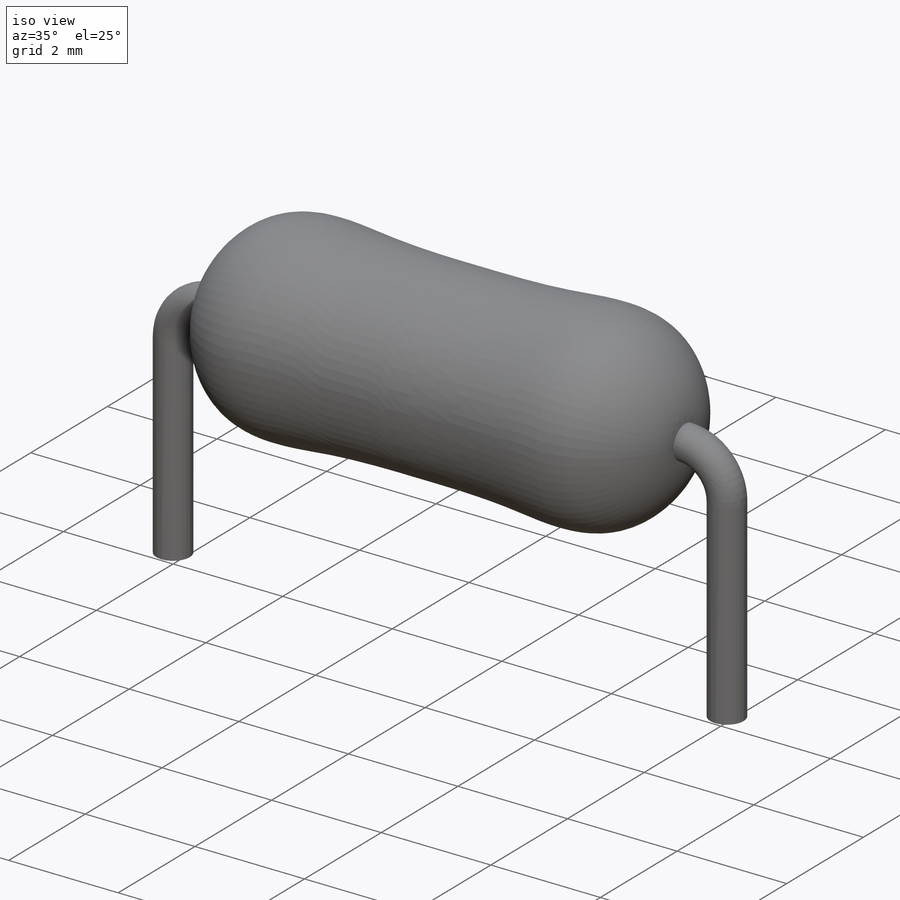
[diagram: iso view]
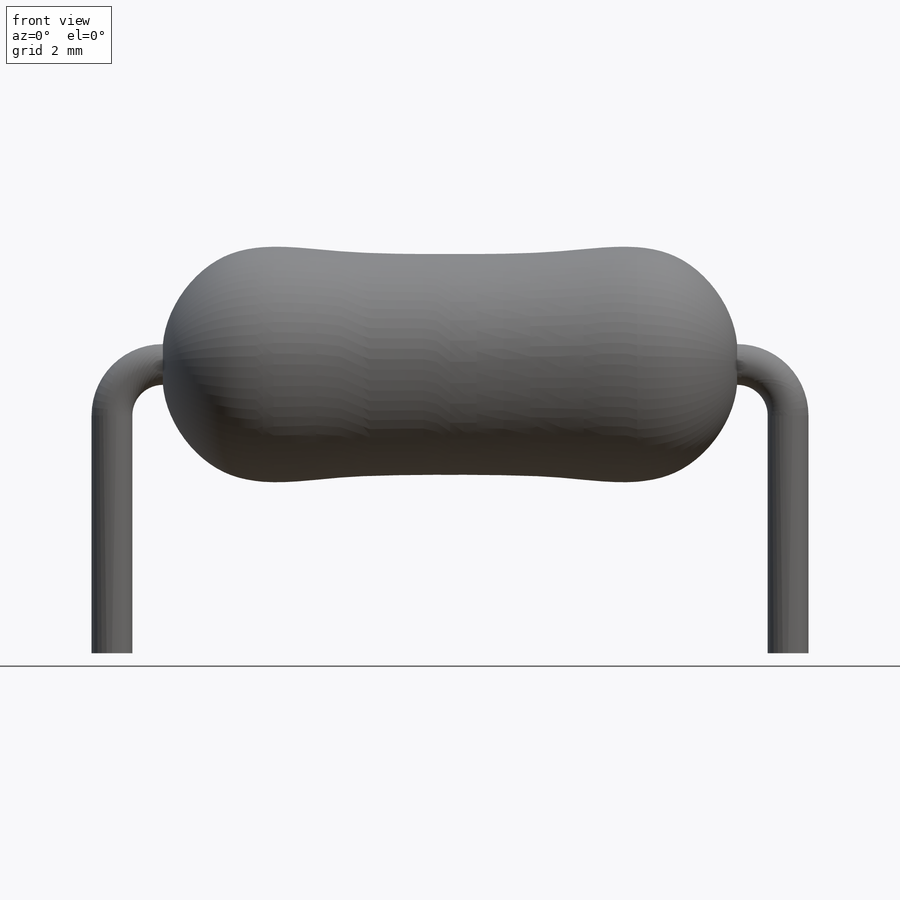
[diagram: front view]
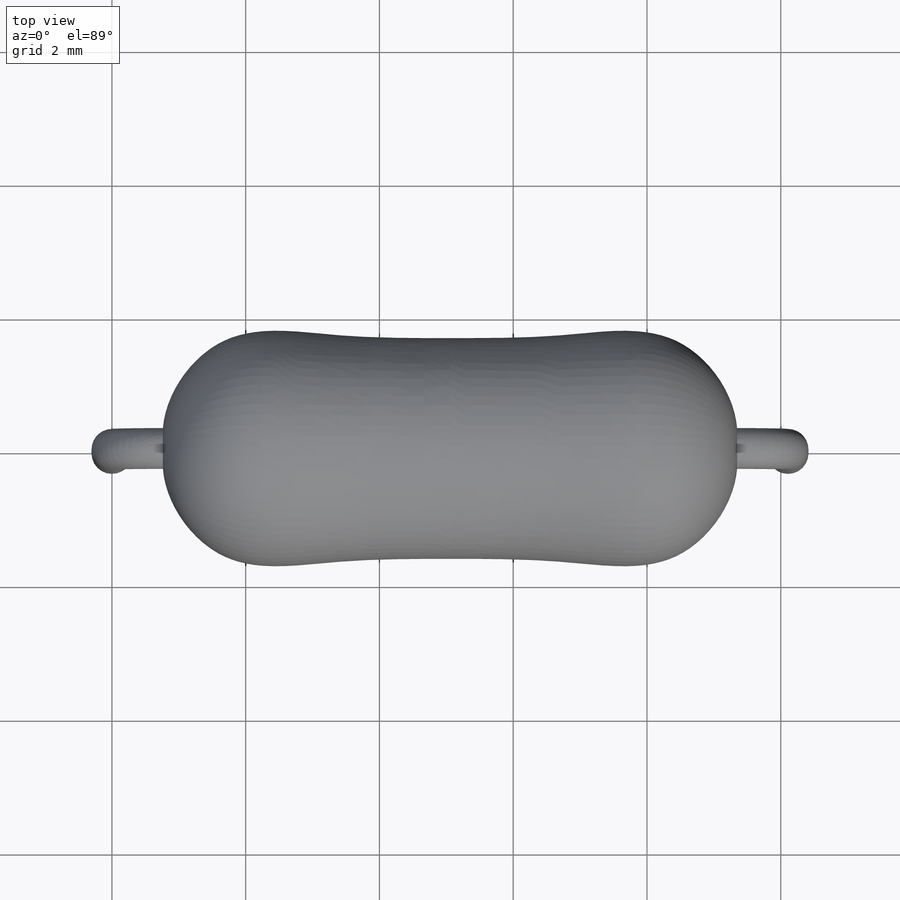
[diagram: top view]
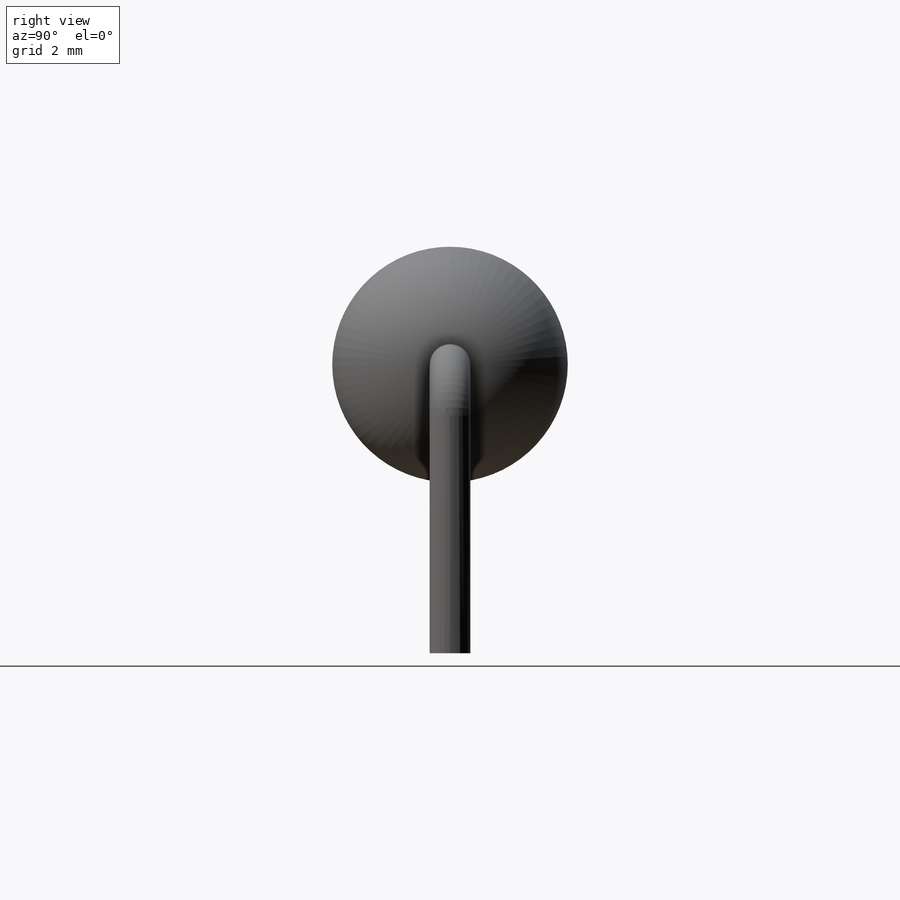
[diagram: right view]
SOLIDWORKS PART (.sldprt)
format: sldprt  version: not decoded by parser v0  size: 392,192 bytes
history: native  units: mm
features: sketch x6, plane x2, mirror x2, material x1, sweep x1, revolve x1 (+12 scaffold rows collapsed)
feature tree (25):
  scaffold x12  (default folders/planes/origin — collapsed)
  material  "Material <not specified>"
  sketch  "Sketch1"
  plane  "Plane4"
  sketch  "Sketch3"  dims[D1=0.6096mm]
  sweep  "Base-Sweep"
  sketch  "Sketch4"
  revolve  "Boss-Revolve1"  Angle=360deg
  sketch  "Sketch6"  dims[c1.D1=0.8mm c1.D2=0.8mm c1.D3=0.8mm c2.D2=0.4mm]
  mirror  "Boss-Mirror1"
  sketch  "Sketch7"  dims[D1=0.8mm D2=0.8mm]
  mirror  "band 2"
  plane  "Plane5"  Offset=0.6mm
  sketch  "Component_Outline"  dims[D1=1.477mm D2=1.477mm]
decode coverage: 5 of 10 modeling features carry decoded parameters
note: suppression state not decoded; provenance and decode notes live in map.json
